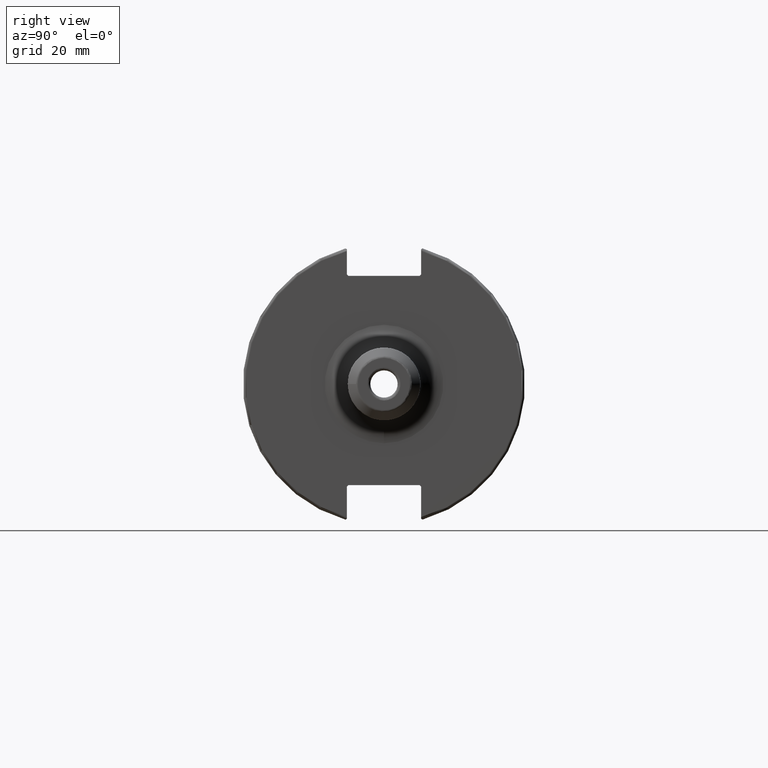
[diagram: clean part render]
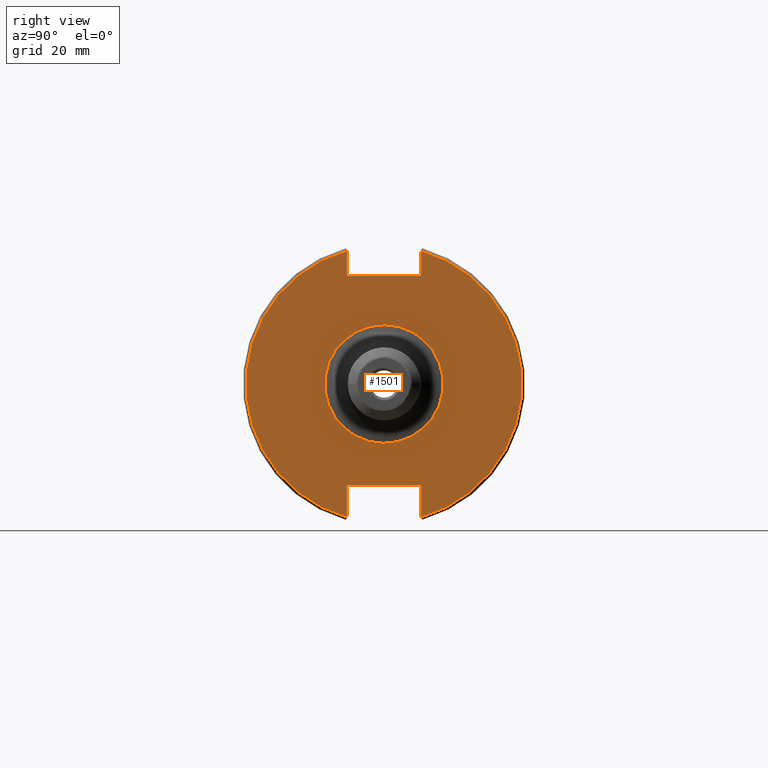
[diagram: same view with one face highlighted and labeled with its STEP entity id]
A machine part, right view. The second image highlights one B-rep face of the part: STEP entity #1501.
In plain terms, the highlighted planar face has unit normal (1, 0, 0).
Its self-contained STEP definition (entity closure, byte-faithful):
#34=PLANE('',#1632);
#84=FACE_BOUND('',#296,.T.);
#120=CIRCLE('',#1631,20.7);
#121=CIRCLE('',#1633,48.2125);
#122=CIRCLE('',#1634,48.2125);
#203=FACE_OUTER_BOUND('',#295,.T.);
#295=EDGE_LOOP('',(#1063,#1064,#1065,#1066,#1067,#1068,#1069,#1070,#1071,
#1072,#1073,#1074));
#296=EDGE_LOOP('',(#1075));
#393=LINE('',#2417,#486);
#394=LINE('',#2419,#487);
#395=LINE('',#2421,#488);
#396=LINE('',#2423,#489);
#397=LINE('',#2425,#490);
#398=LINE('',#2429,#491);
#399=LINE('',#2431,#492);
#400=LINE('',#2433,#493);
#401=LINE('',#2435,#494);
#402=LINE('',#2436,#495);
#486=VECTOR('',#1843,10.);
#487=VECTOR('',#1844,10.);
#488=VECTOR('',#1845,10.);
#489=VECTOR('',#1846,10.);
#490=VECTOR('',#1847,10.);
#491=VECTOR('',#1850,10.);
#492=VECTOR('',#1851,10.);
#493=VECTOR('',#1852,10.);
#494=VECTOR('',#1853,10.);
#495=VECTOR('',#1854,10.);
#639=VERTEX_POINT('',#2409);
#640=VERTEX_POINT('',#2413);
#641=VERTEX_POINT('',#2414);
#642=VERTEX_POINT('',#2416);
#643=VERTEX_POINT('',#2418);
#644=VERTEX_POINT('',#2420);
#645=VERTEX_POINT('',#2422);
#646=VERTEX_POINT('',#2424);
#647=VERTEX_POINT('',#2426);
#648=VERTEX_POINT('',#2428);
#649=VERTEX_POINT('',#2430);
#650=VERTEX_POINT('',#2432);
#651=VERTEX_POINT('',#2434);
#804=EDGE_CURVE('',#639,#639,#120,.T.);
#805=EDGE_CURVE('',#640,#641,#121,.T.);
#806=EDGE_CURVE('',#640,#642,#393,.T.);
#807=EDGE_CURVE('',#643,#642,#394,.T.);
#808=EDGE_CURVE('',#643,#644,#395,.T.);
#809=EDGE_CURVE('',#645,#644,#396,.T.);
#810=EDGE_CURVE('',#645,#646,#397,.T.);
#811=EDGE_CURVE('',#647,#646,#122,.T.);
#812=EDGE_CURVE('',#647,#648,#398,.T.);
#813=EDGE_CURVE('',#649,#648,#399,.T.);
#814=EDGE_CURVE('',#649,#650,#400,.T.);
#815=EDGE_CURVE('',#651,#650,#401,.T.);
#816=EDGE_CURVE('',#651,#641,#402,.T.);
#1063=ORIENTED_EDGE('',*,*,#805,.F.);
#1064=ORIENTED_EDGE('',*,*,#806,.T.);
#1065=ORIENTED_EDGE('',*,*,#807,.F.);
#1066=ORIENTED_EDGE('',*,*,#808,.T.);
#1067=ORIENTED_EDGE('',*,*,#809,.F.);
#1068=ORIENTED_EDGE('',*,*,#810,.T.);
#1069=ORIENTED_EDGE('',*,*,#811,.F.);
#1070=ORIENTED_EDGE('',*,*,#812,.T.);
#1071=ORIENTED_EDGE('',*,*,#813,.F.);
#1072=ORIENTED_EDGE('',*,*,#814,.T.);
#1073=ORIENTED_EDGE('',*,*,#815,.F.);
#1074=ORIENTED_EDGE('',*,*,#816,.T.);
#1075=ORIENTED_EDGE('',*,*,#804,.F.);
#1501=ADVANCED_FACE('',(#203,#84),#34,.T.);
#1631=AXIS2_PLACEMENT_3D('',#2411,#1837,#1838);
#1632=AXIS2_PLACEMENT_3D('',#2412,#1839,#1840);
#1633=AXIS2_PLACEMENT_3D('',#2415,#1841,#1842);
#1634=AXIS2_PLACEMENT_3D('',#2427,#1848,#1849);
#1837=DIRECTION('center_axis',(1.,0.,0.));
#1838=DIRECTION('ref_axis',(0.,-1.,-1.22464679914735E-16));
#1839=DIRECTION('center_axis',(1.,0.,0.));
#1840=DIRECTION('ref_axis',(0.,0.,-1.));
#1841=DIRECTION('center_axis',(-1.,0.,0.));
#1842=DIRECTION('ref_axis',(0.,1.,-6.12323399573677E-17));
#1843=DIRECTION('',(0.,0.,-1.));
#1844=DIRECTION('',(0.,0.707106781186549,0.707106781186546));
#1845=DIRECTION('',(0.,-1.,0.));
#1846=DIRECTION('',(0.,0.707106781186549,-0.707106781186546));
#1847=DIRECTION('',(0.,0.,1.));
#1848=DIRECTION('center_axis',(-1.,0.,0.));
#1849=DIRECTION('ref_axis',(0.,-1.,1.60812264967664E-16));
#1850=DIRECTION('',(0.,0.,1.));
#1851=DIRECTION('',(0.,-0.707106781186549,-0.707106781186546));
#1852=DIRECTION('',(0.,1.,0.));
#1853=DIRECTION('',(0.,-0.707106781186549,0.707106781186546));
#1854=DIRECTION('',(0.,0.,-1.));
#2409=CARTESIAN_POINT('',(19.05,-2.53501887423502E-15,-20.7));
#2411=CARTESIAN_POINT('Origin',(19.05,0.,0.));
#2412=CARTESIAN_POINT('Origin',(19.05,0.,0.));
#2413=CARTESIAN_POINT('',(19.05,12.95,46.4407434937254));
#2414=CARTESIAN_POINT('',(19.05,12.95,-46.4407434937254));
#2415=CARTESIAN_POINT('Origin',(19.05,0.,0.));
#2416=CARTESIAN_POINT('',(19.05,12.95,38.219));
#2417=CARTESIAN_POINT('',(19.05,12.95,18.8595));
#2418=CARTESIAN_POINT('',(19.05,12.45,37.719));
#2419=CARTESIAN_POINT('',(19.05,0.0327499999999836,25.30175));
#2420=CARTESIAN_POINT('',(19.05,-12.45,37.719));
#2421=CARTESIAN_POINT('',(19.05,0.,37.719));
#2422=CARTESIAN_POINT('',(19.05,-12.95,38.219));
#2423=CARTESIAN_POINT('',(19.05,-0.0327499999999817,25.30175));
#2424=CARTESIAN_POINT('',(19.05,-12.95,46.4407434937254));
#2425=CARTESIAN_POINT('',(19.05,-12.95,18.8595));
#2426=CARTESIAN_POINT('',(19.05,-12.95,-46.4407434937254));
#2427=CARTESIAN_POINT('Origin',(19.05,0.,0.));
#2428=CARTESIAN_POINT('',(19.05,-12.95,-35.806));
#2429=CARTESIAN_POINT('',(19.05,-12.95,-17.653));
#2430=CARTESIAN_POINT('',(19.05,-12.45,-35.306));
#2431=CARTESIAN_POINT('',(19.05,-0.635999999999989,-23.492));
#2432=CARTESIAN_POINT('',(19.05,12.45,-35.306));
#2433=CARTESIAN_POINT('',(19.05,-3.33066907387547E-15,-35.306));
#2434=CARTESIAN_POINT('',(19.05,12.95,-35.806));
#2435=CARTESIAN_POINT('',(19.05,0.635999999999982,-23.492));
#2436=CARTESIAN_POINT('',(19.05,12.95,-17.653));